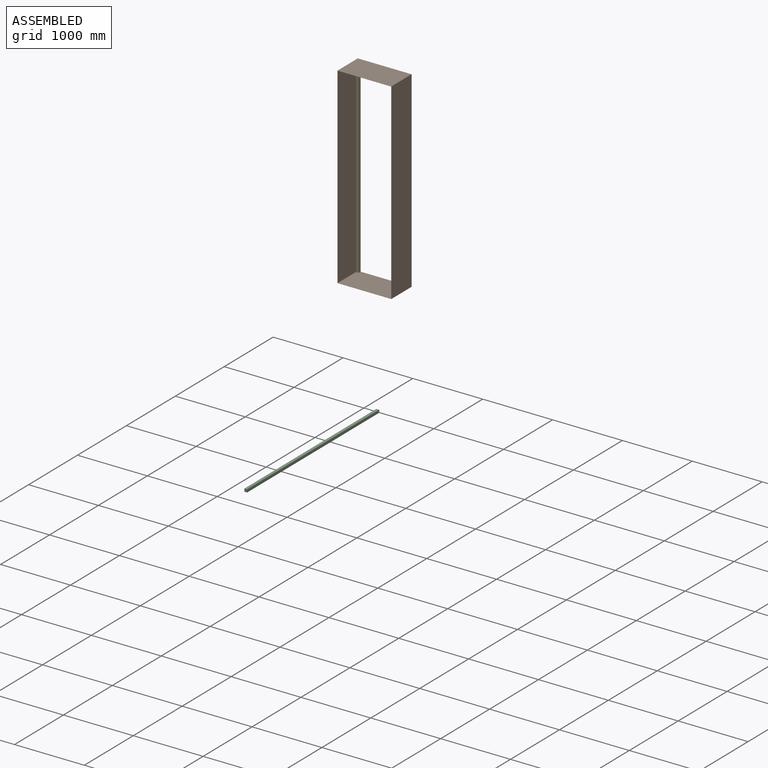
[diagram: assembled view]
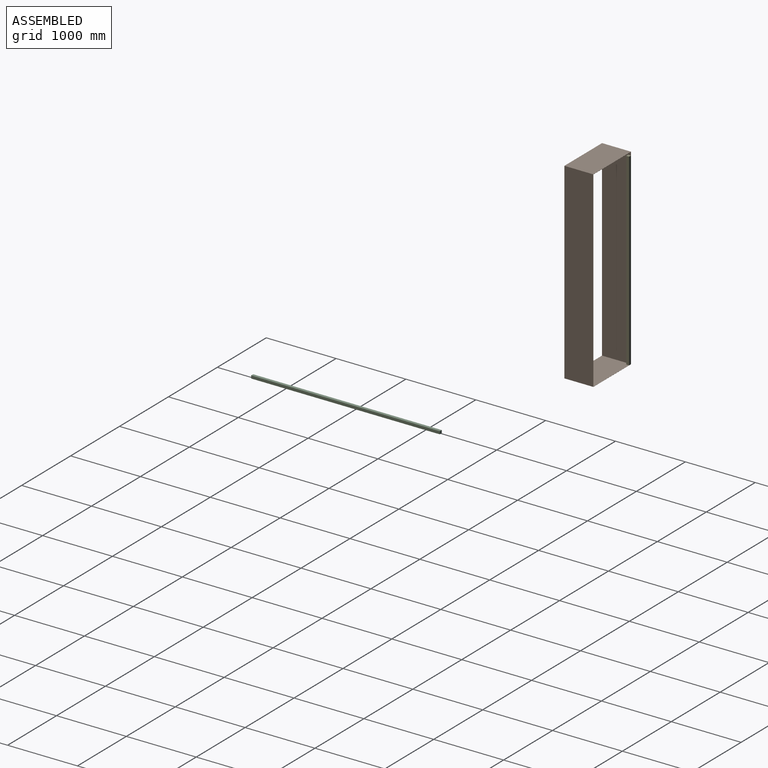
[diagram: assembled view, second angle]
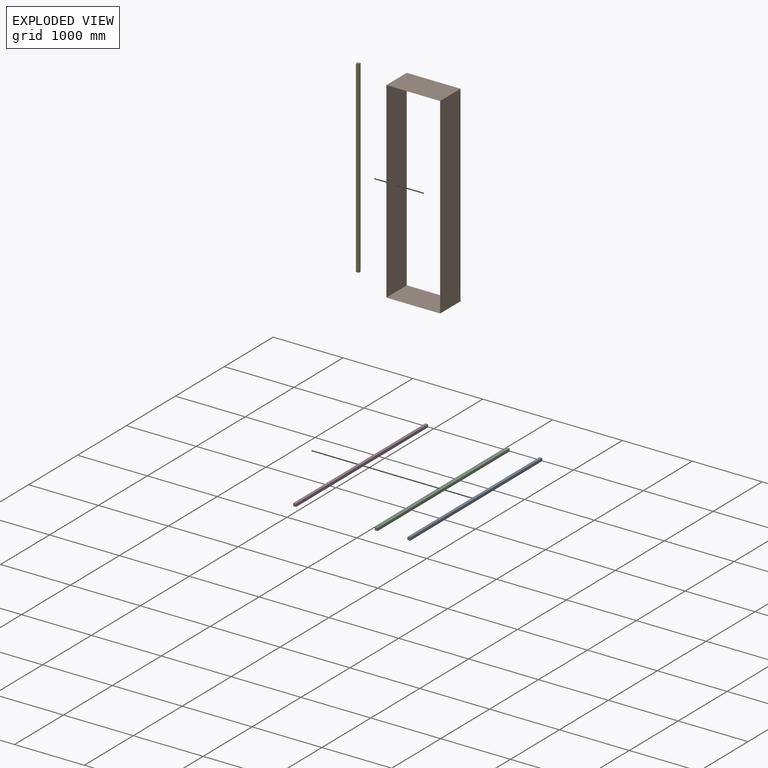
[diagram: exploded view]
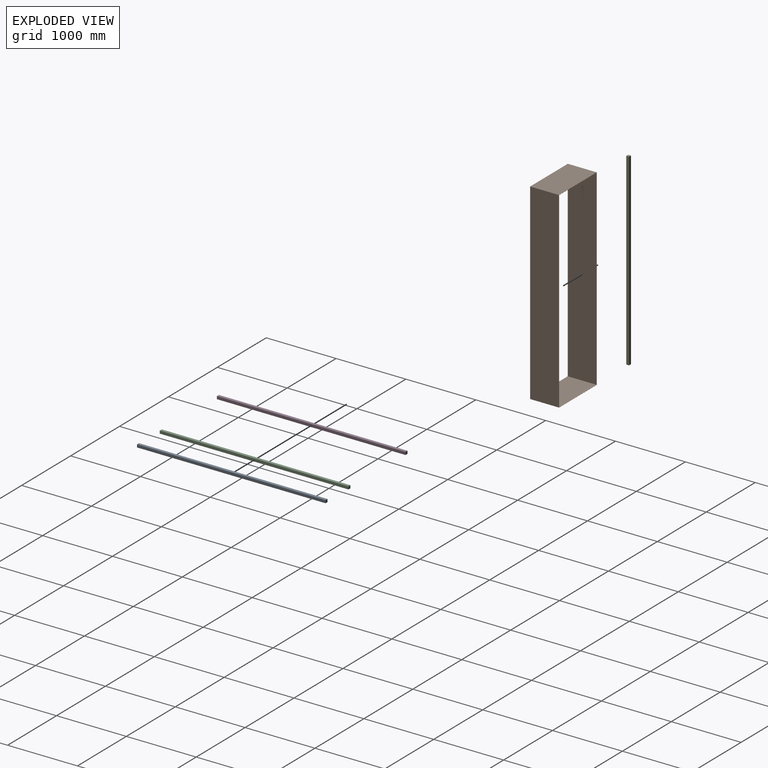
[diagram: exploded view, second angle]
ASSEMBLY  parts=5 mates=4
PART A: 6 faces, bbox 40x2700x40 mm
  f0: plane 2700x40mm, normal (0,0,-1), area 108000mm2, adj f1,f3,f4,f5
  f1: plane 2700x40mm, normal (1,0,0), area 108000mm2, adj f0,f2,f4,f5
  f2: plane 2700x40mm, normal (0,0,1), area 108000mm2, adj f1,f3,f4,f5
  f3: plane 2700x40mm, normal (-1,0,0), area 108000mm2, adj f0,f2,f4,f5
  f4: plane 40x40mm, normal (0,-1,0), area 1600mm2, adj f0,f1,f2,f3
  f5: plane 40x40mm, normal (0,1,0), area 1600mm2, adj f0,f1,f2,f3
PART B: 10 faces, bbox 770x415x2750 mm
  f0: plane 2750x770mm, normal (0,-1,0), area 7036mm2, adj f2,f3,f4,f5,f6,f7,f8,f9
  f1: plane 2750x770mm, normal (0,1,0), area 7036mm2, adj f2,f3,f4,f5,f6,f7,f8,f9
  f2: plane 770x415mm, normal (0,0,-1), area 319550mm2, adj f0,f1,f3,f5
  f3: plane 2750x415mm, normal (1,0,0), area 1141250mm2, adj f0,f1,f2,f4
  f4: plane 770x415mm, normal (0,0,1), area 319550mm2, adj f0,f1,f3,f5
  f5: plane 2750x415mm, normal (-1,0,0), area 1141250mm2, adj f0,f1,f2,f4
  f6: plane 768x415mm, normal (0,0,1), area 318720mm2, adj f0,f1,f7,f9
  f7: plane 2748x415mm, normal (-1,0,0), area 1140420mm2, adj f0,f1,f6,f8
  f8: plane 768x415mm, normal (0,0,-1), area 318720mm2, adj f0,f1,f7,f9
  f9: plane 2748x415mm, normal (1,0,0), area 1140420mm2, adj f0,f1,f6,f8
PART C: same geometry as A
PART D: same geometry as A
PART E: same geometry as A
PLACE A at identity
PLACE B rot(axis=(0.2,0.37,-0.91),0deg) t=(-702.3,1693.46,770.13)mm
PLACE C at identity
PLACE D at identity
PLACE E rot(axis=(-0.58,0.58,-0.58),120deg) t=(-1451.3,1673.46,771.13)mm
MATE planar E.f5 <-> B.f6  axis (0,0,-1) through (-1451.3,1673.46,771.13)mm
MATE planar E.f0 <-> B.f9  axis (-1,0,0) through (-1471.3,1673.46,2121.13)mm
MATE planar B.f1 <-> E.f3  axis (0,1,0) through (-1087.3,1693.46,2145.13)mm
MATE planar E.f5 <-> B.f6  axis (0,0,-1) through (-1451.3,1673.46,771.13)mm
